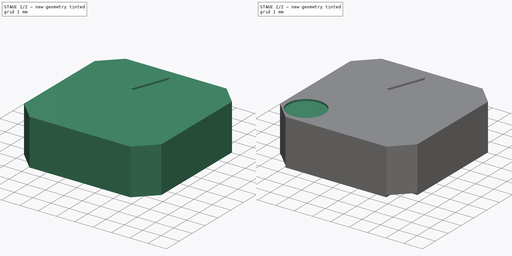
[diagram: build sequence overview — one tinted view per stage of 2, left to right]
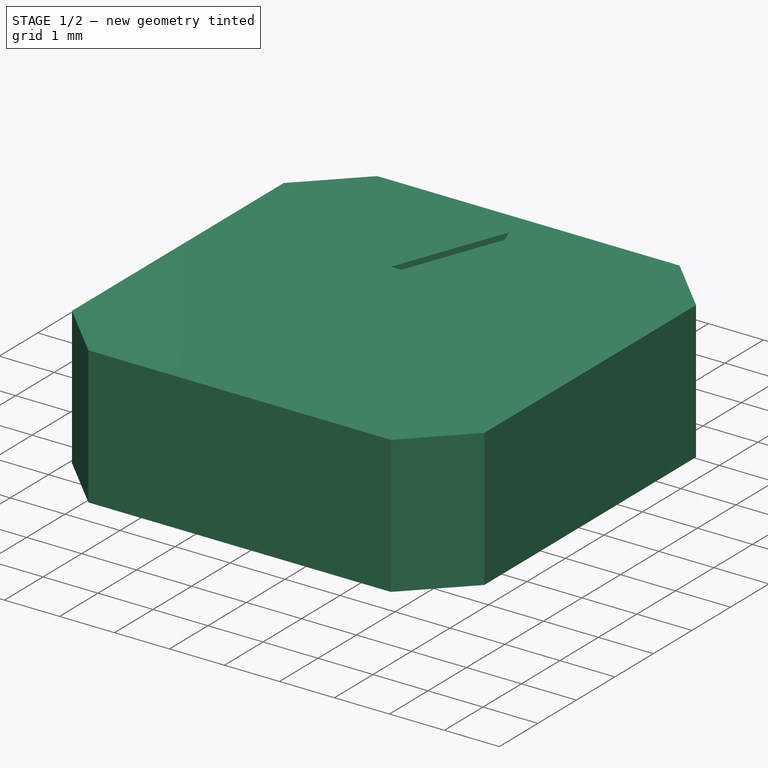
[diagram: stage 1 of 2 — iso view after this stage's code; geometry added in this stage tinted green]
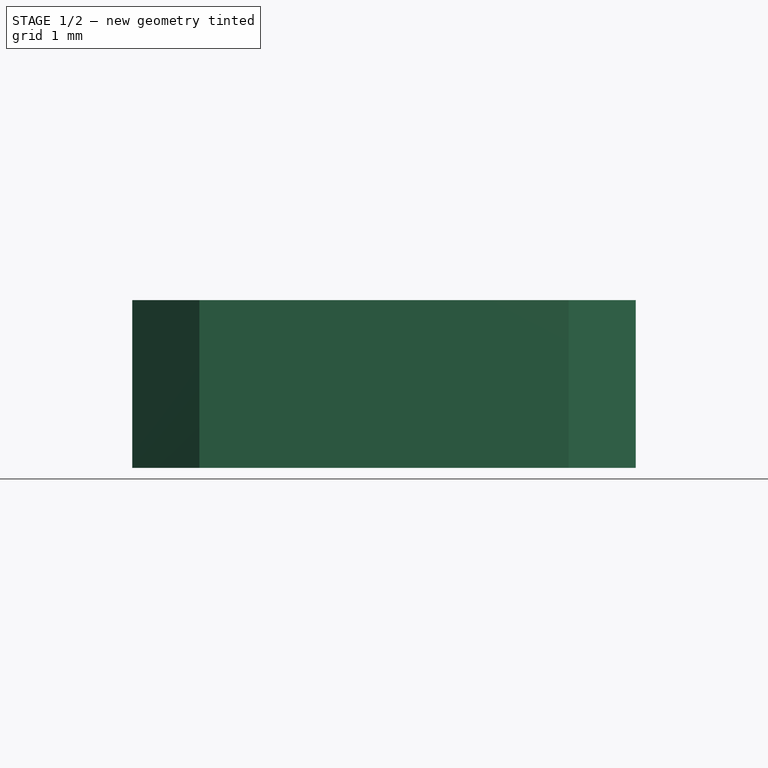
[diagram: stage 1 of 2 — front view after this stage's code; geometry added in this stage tinted green]
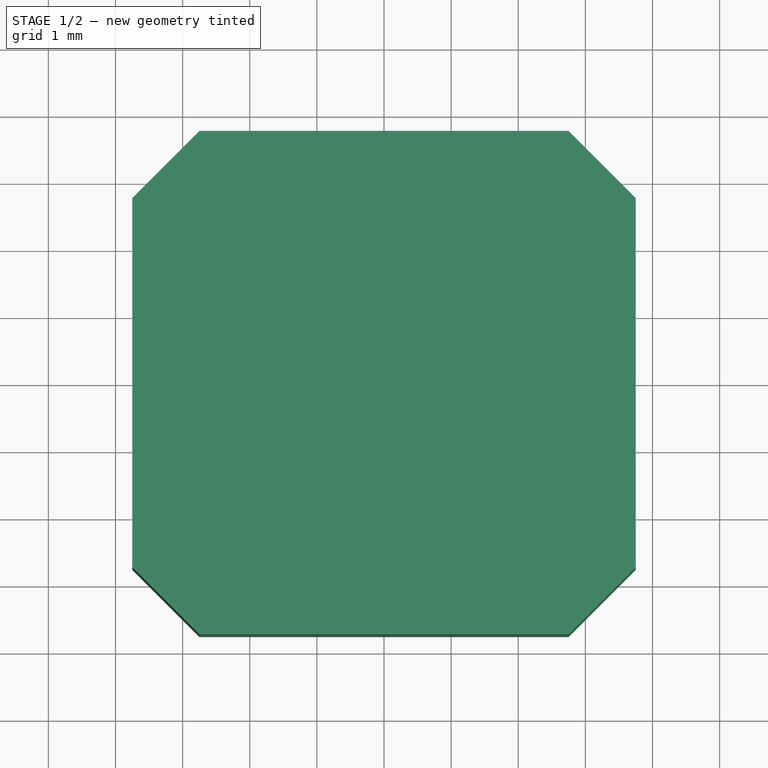
[diagram: stage 1 of 2 — top view after this stage's code; geometry added in this stage tinted green]
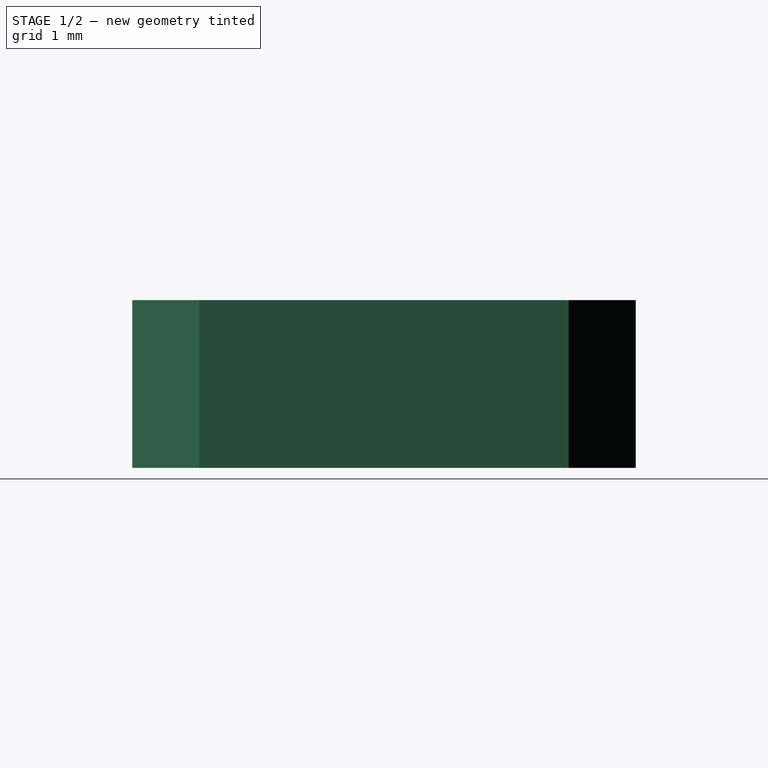
[diagram: stage 1 of 2 — right view after this stage's code; geometry added in this stage tinted green]
FCSTD DOCUMENT  (FreeCAD 0.17R13541 (Git))
Label: KLJ-7525-3627
License: All rights reserved
LicenseURL: http://en.wikipedia.org/wiki/All_rights_reserved
objects: Sketcher::SketchObject×5, PartDesign::Pocket×3, PartDesign::Pad×2, PartDesign::Body×2
note: 17 computed .brp shape members not serialized (recipe doc carries the construction recipe); baked Part::Feature solids carry a one-line shape summary decoded from their .brp

FEATURE [Sketcher::SketchObject] Sketch  label="Main Body"
  MapMode = 2
  Placement = pos=(0,0,2.5) rot=(0,0,1;0rad)
  sketch-geometry (8):
    g0: LineSegment StartX=-2.75 StartY=3.75 StartZ=0 EndX=2.75 EndY=3.75 EndZ=0
    g1: LineSegment StartX=2.75 StartY=3.75 StartZ=0 EndX=3.75 EndY=2.75 EndZ=0
    g2: LineSegment StartX=3.75 StartY=2.75 StartZ=0 EndX=3.75 EndY=-2.75 EndZ=0
    g3: LineSegment StartX=3.75 StartY=-2.75 StartZ=0 EndX=2.75 EndY=-3.75 EndZ=0
    g4: LineSegment StartX=2.75 StartY=-3.75 StartZ=0 EndX=-2.75 EndY=-3.75 EndZ=0
    g5: LineSegment StartX=-2.75 StartY=-3.75 StartZ=0 EndX=-3.75 EndY=-2.75 EndZ=0
    g6: LineSegment StartX=-3.75 StartY=-2.75 StartZ=0 EndX=-3.75 EndY=2.75 EndZ=0
    g7: LineSegment StartX=-3.75 StartY=2.75 StartZ=0 EndX=-2.75 EndY=3.75 EndZ=0
  constraints (24):
    c: Horizontal(g0)
    c: Coincident(g0,g1)
    c: Coincident(g1,g2)
    c: Vertical(g2)
    c: Coincident(g2,g3)
    c: Coincident(g3,g4)
    c: Horizontal(g4)
    c: Coincident(g4,g5)
    c: Coincident(g5,g6)
    c: Vertical(g6)
    c: Coincident(g6,g7)
    c: Coincident(g7,g0)
    c: DistanceX(g6,g1) = 7.5
    c: DistanceY(g3,g0) = 7.5
    c: Angle(g5,g6) = 2.35619
    c: Angle(g3,g4) = 2.35619
    c: Equal(g0,g4)
    c: Equal(g6,g2)
    c: DistanceX(g6,g0) = 1
    c: Equal(g7,g1)
    c: Equal(g1,g3)
    c: Equal(g3,g5)
    c: DistanceY(g-1,g0) = 3.75
    c: DistanceX(g5,g-1) = 3.75
FEATURE [PartDesign::Pad] Pad
  Length = 2.5
  Length2 = 100
  Placement = pos=(0,0,2.5) rot=(0,0,1;0rad)
  Profile = -> Sketch
  Type = 0
FEATURE [Sketcher::SketchObject] Sketch001  label="Triangle"
  ExternalGeometry = -> [Pad]
  MapMode = 5
  Placement = pos=(0,0,5) rot=(0,0,1;0rad)
  Support = -> [Pad]
  sketch-geometry (3):
    g0: LineSegment StartX=0 StartY=3.25 StartZ=0 EndX=0.75 EndY=1.25 EndZ=0
    g1: LineSegment StartX=0.75 StartY=1.25 StartZ=0 EndX=-0.75 EndY=1.25 EndZ=0
    g2: LineSegment StartX=-0.75 StartY=1.25 StartZ=0 EndX=0 EndY=3.25 EndZ=0
  constraints (9):
    c: Coincident(g0,g1)
    c: Horizontal(g1)
    c: Coincident(g1,g2)
    c: Coincident(g2,g0)
    c: DistanceX(g1,g1) = 1.5
    c: DistanceY(g2,g2) = 2
    c: DistanceX(g1,g0) = 0.75
    c: DistanceY(g0,g-3) = 0.5
    c: DistanceX(g-3,g0) = 2.75
FEATURE [PartDesign::Pocket] Pocket  label="Triangle Pocket"
  BaseFeature = -> Pad
  Length = 0.1
  Length2 = 100
  Placement = pos=(0,0,2.5) rot=(0,0,1;0rad)
  Profile = -> Sketch001
  Type = 0
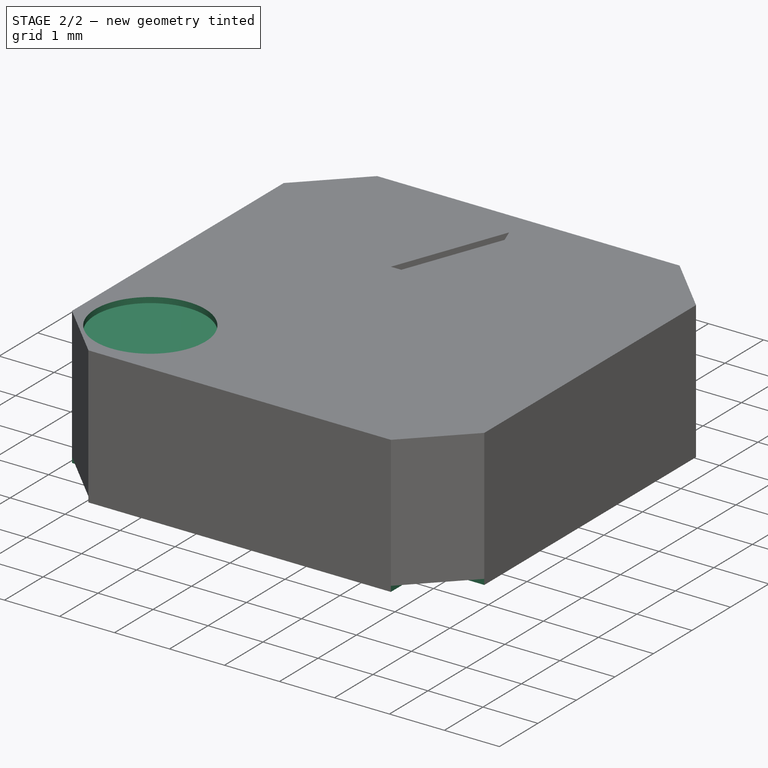
[diagram: stage 2 of 2 — iso view after this stage's code; geometry added in this stage tinted green]
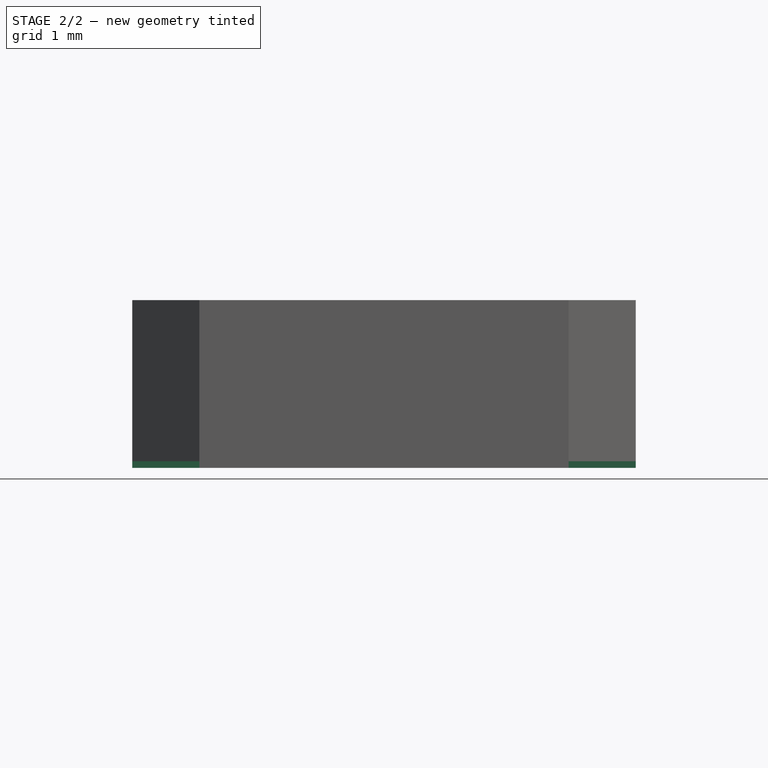
[diagram: stage 2 of 2 — front view after this stage's code; geometry added in this stage tinted green]
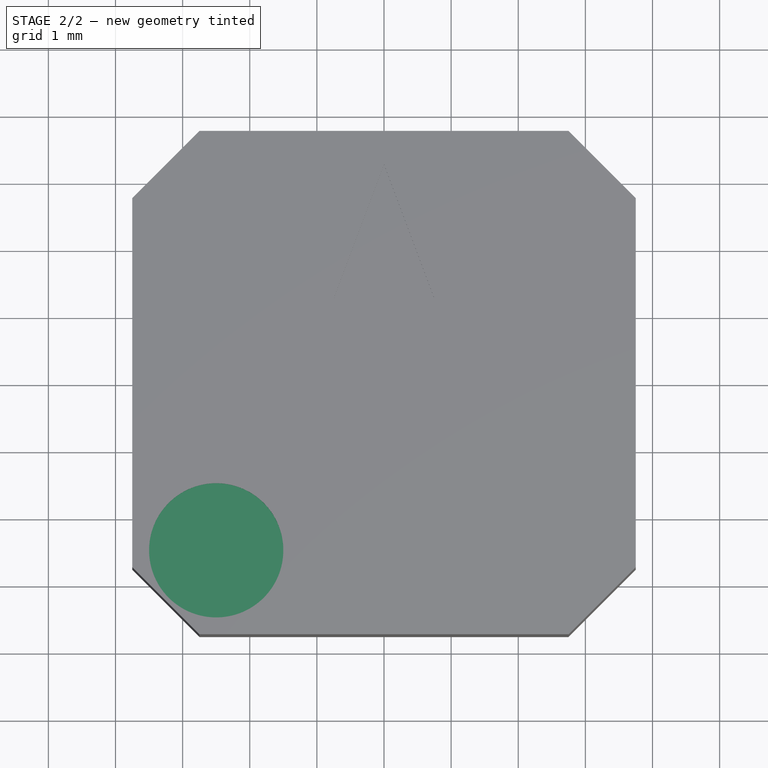
[diagram: stage 2 of 2 — top view after this stage's code; geometry added in this stage tinted green]
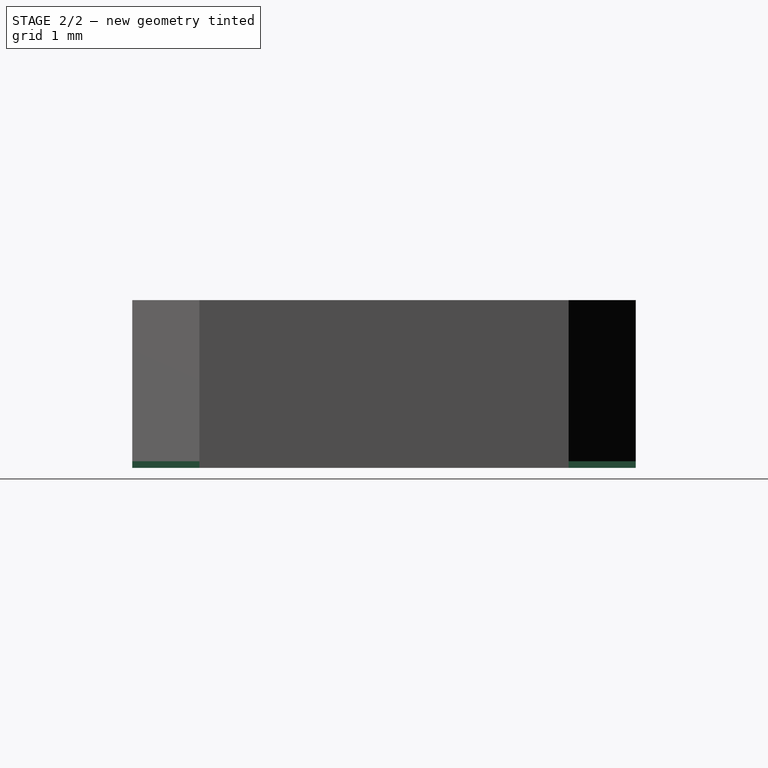
[diagram: stage 2 of 2 — right view after this stage's code; geometry added in this stage tinted green]
FEATURE [Sketcher::SketchObject] Sketch002  label="Circle"
  ExternalGeometry = -> [Pocket]
  MapMode = 5
  Placement = pos=(0,0,5) rot=(0,0,1;0rad)
  Support = -> [Pocket]
  sketch-geometry (1):
    g0: Circle CenterX=-2.5 CenterY=-2.5 CenterZ=0 NormalX=0 NormalY=0 NormalZ=1 AngleXU=0 Radius=1
  constraints (3):
    c: DistanceY(g-4,g0) = 1.25
    c: DistanceX(g-3,g0) = 1.25
    c: Radius(g0) = 1
FEATURE [PartDesign::Pocket] Pocket001  label="Circle Pocket"
  BaseFeature = -> Pocket
  Length = 0.1
  Length2 = 100
  Placement = pos=(0,0,2.5) rot=(0,0,1;0rad)
  Profile = -> Sketch002
  Type = 0
FEATURE [Sketcher::SketchObject] Sketch003  label="Pads"
  MapMode = 5
  Placement = pos=(0,0,2.5) rot=(1,0,0;3.14159rad)
  Support = -> [Pocket001]
  sketch-geometry (15):
    g0: LineSegment StartX=2.75 StartY=3.75 StartZ=0 EndX=3.75 EndY=3.75 EndZ=0
    g1: LineSegment StartX=3.75 StartY=3.75 StartZ=0 EndX=3.75 EndY=2.75 EndZ=0
    g2: LineSegment StartX=3.75 StartY=2.75 StartZ=0 EndX=2.75 EndY=2.75 EndZ=0
    g3: LineSegment StartX=2.75 StartY=2.75 StartZ=0 EndX=2.75 EndY=3.75 EndZ=0
    g4: LineSegment StartX=-3.75 StartY=3.75 StartZ=0 EndX=-2.75 EndY=3.75 EndZ=0
    g5: LineSegment StartX=-2.75 StartY=3.75 StartZ=0 EndX=-2.75 EndY=2.75 EndZ=0
    g6: LineSegment StartX=-2.75 StartY=2.75 StartZ=0 EndX=-3.75 EndY=2.75 EndZ=0
    g7: LineSegment StartX=-3.75 StartY=2.75 StartZ=0 EndX=-3.75 EndY=3.75 EndZ=0
    g8: LineSegment StartX=2.75 StartY=-3.75 StartZ=0 EndX=3.75 EndY=-3.75 EndZ=0
    g9: LineSegment StartX=3.75 StartY=-3.75 StartZ=0 EndX=3.75 EndY=-2.75 EndZ=0
    g10: LineSegment StartX=3.75 StartY=-2.75 StartZ=0 EndX=2.75 EndY=-2.75 EndZ=0
    g11: LineSegment StartX=2.75 StartY=-2.75 StartZ=0 EndX=2.75 EndY=-3.75 EndZ=0
    g12: LineSegment StartX=-3.75 StartY=-2.75 StartZ=0 EndX=-2.75 EndY=-3.75 EndZ=0
    g13: LineSegment StartX=-2.75 StartY=-3.75 StartZ=0 EndX=-2.75 EndY=-2.75 EndZ=0
    g14: LineSegment StartX=-2.75 StartY=-2.75 StartZ=0 EndX=-3.75 EndY=-2.75 EndZ=0
  constraints (45):
    c: Coincident(g0,g1)
    c: Coincident(g1,g2)
    c: Coincident(g2,g3)
    c: Coincident(g3,g0)
    c: Horizontal(g0)
    c: Horizontal(g2)
    c: Vertical(g1)
    c: Vertical(g3)
    c: Coincident(g4,g5)
    c: Coincident(g5,g6)
    c: Coincident(g6,g7)
    c: Coincident(g7,g4)
    c: Horizontal(g4)
    c: Horizontal(g6)
    c: Vertical(g5)
    c: Vertical(g7)
    c: Coincident(g8,g9)
    c: Coincident(g9,g10)
    c: Coincident(g10,g11)
    c: Coincident(g11,g8)
    c: Horizontal(g8)
    c: Horizontal(g10)
    c: Vertical(g9)
    c: Vertical(g11)
    c: Coincident(g12,g13)
    c: Coincident(g13,g14)
    c: Horizontal(g14)
    c: Coincident(g12,g14)
    c: Equal(g14,g13)
    c: DistanceX(g6,g-1) = 3.75
    c: DistanceY(g-1,g4) = 3.75
    c: Equal(g5,g6)
    c: DistanceX(g4,g4) = 1
    c: Equal(g0,g3)
    c: DistanceX(g0,g0) = 1
    c: DistanceX(g-1,g1) = 3.75
    c: DistanceY(g-1,g0) = 3.75
    c: DistanceX(g12,g-1) = 3.75
    c: DistanceY(g12,g-1) = 3.75
    c: Perpendicular(g13,g14)
    c: DistanceX(g14,g14) = 1
    c: Equal(g11,g10)
    c: DistanceX(g10,g10) = 1
    c: DistanceX(g-1,g9) = 3.75
    c: DistanceY(g8,g-1) = 3.75
FEATURE [PartDesign::Pocket] Pocket002  label="Pad holes"
  BaseFeature = -> Pocket001
  Length = 0.1
  Length2 = 100
  Placement = pos=(0,0,2.5) rot=(0,0,1;0rad)
  Profile = -> Sketch003
  Type = 0
FEATURE [PartDesign::Body] Body  label="Main"
  Group = -> [Sketch,Pad,Sketch001,Pocket,Sketch002,Pocket001,Sketch003,Pocket002]
  Origin = -> Origin
  Tip = -> Pocket002
FEATURE [Sketcher::SketchObject] CopySketch003
  Placement = pos=(0,0,2.5) rot=(1,0,0;3.14159rad)
  sketch-geometry (15):
    g0: LineSegment StartX=2.75 StartY=3.75 StartZ=0 EndX=3.75 EndY=3.75 EndZ=0
    g1: LineSegment StartX=3.75 StartY=3.75 StartZ=0 EndX=3.75 EndY=2.75 EndZ=0
    g2: LineSegment StartX=3.75 StartY=2.75 StartZ=0 EndX=2.75 EndY=2.75 EndZ=0
    g3: LineSegment StartX=2.75 StartY=2.75 StartZ=0 EndX=2.75 EndY=3.75 EndZ=0
    g4: LineSegment StartX=-3.75 StartY=3.75 StartZ=0 EndX=-2.75 EndY=3.75 EndZ=0
    g5: LineSegment StartX=-2.75 StartY=3.75 StartZ=0 EndX=-2.75 EndY=2.75 EndZ=0
    g6: LineSegment StartX=-2.75 StartY=2.75 StartZ=0 EndX=-3.75 EndY=2.75 EndZ=0
    g7: LineSegment StartX=-3.75 StartY=2.75 StartZ=0 EndX=-3.75 EndY=3.75 EndZ=0
    g8: LineSegment StartX=2.75 StartY=-3.75 StartZ=0 EndX=3.75 EndY=-3.75 EndZ=0
    g9: LineSegment StartX=3.75 StartY=-3.75 StartZ=0 EndX=3.75 EndY=-2.75 EndZ=0
    g10: LineSegment StartX=3.75 StartY=-2.75 StartZ=0 EndX=2.75 EndY=-2.75 EndZ=0
    g11: LineSegment StartX=2.75 StartY=-2.75 StartZ=0 EndX=2.75 EndY=-3.75 EndZ=0
    g12: LineSegment StartX=-3.75 StartY=-2.75 StartZ=0 EndX=-2.75 EndY=-3.75 EndZ=0
    g13: LineSegment StartX=-2.75 StartY=-3.75 StartZ=0 EndX=-2.75 EndY=-2.75 EndZ=0
    g14: LineSegment StartX=-2.75 StartY=-2.75 StartZ=0 EndX=-3.75 EndY=-2.75 EndZ=0
  constraints (45):
    c: Coincident(g0,g1)
    c: Coincident(g1,g2)
    c: Coincident(g2,g3)
    c: Coincident(g3,g0)
    c: Horizontal(g0)
    c: Horizontal(g2)
    c: Vertical(g1)
    c: Vertical(g3)
    c: Coincident(g4,g5)
    c: Coincident(g5,g6)
    c: Coincident(g6,g7)
    c: Coincident(g7,g4)
    c: Horizontal(g4)
    c: Horizontal(g6)
    c: Vertical(g5)
    c: Vertical(g7)
    c: Coincident(g8,g9)
    c: Coincident(g9,g10)
    c: Coincident(g10,g11)
    c: Coincident(g11,g8)
    c: Horizontal(g8)
    c: Horizontal(g10)
    c: Vertical(g9)
    c: Vertical(g11)
    c: Coincident(g12,g13)
    c: Coincident(g13,g14)
    c: Horizontal(g14)
    c: Coincident(g12,g14)
    c: Equal(g14,g13)
    c: DistanceX(g6,g-1) = 3.75
    c: DistanceY(g-1,g4) = 3.75
    c: Equal(g5,g6)
    c: DistanceX(g4,g4) = 1
    c: Equal(g0,g3)
    c: DistanceX(g0,g0) = 1
    c: DistanceX(g-1,g1) = 3.75
    c: DistanceY(g-1,g0) = 3.75
    c: DistanceX(g12,g-1) = 3.75
    c: DistanceY(g12,g-1) = 3.75
    c: Perpendicular(g13,g14)
    c: DistanceX(g14,g14) = 1
    c: Equal(g11,g10)
    c: DistanceX(g10,g10) = 1
    c: DistanceX(g-1,g9) = 3.75
    c: DistanceY(g8,g-1) = 3.75
FEATURE [PartDesign::Pad] Pad001
  Length = 1e-06
  Length2 = 15
  Placement = pos=(0,0,2.5) rot=(1,0,0;3.14159rad)
  Profile = -> CopySketch003
  Type = 0
FEATURE [PartDesign::Body] Body001  label="Pads001"
  Group = -> [CopySketch003,Pad001]
  Origin = -> Origin001
  Tip = -> Pad001
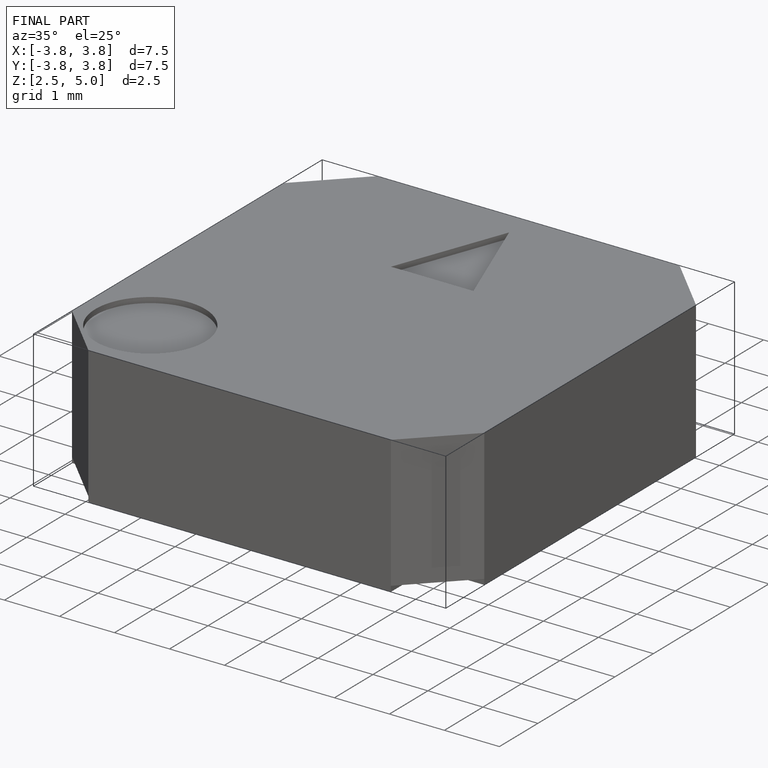
[diagram: finished part — iso view with bounding-box wireframe]
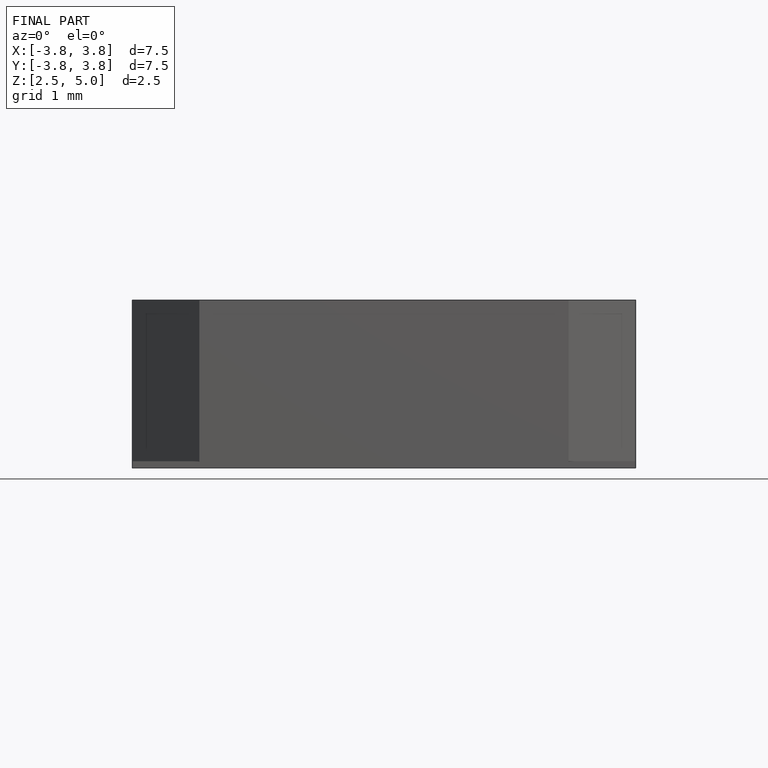
[diagram: finished part — front view with bounding-box wireframe]
